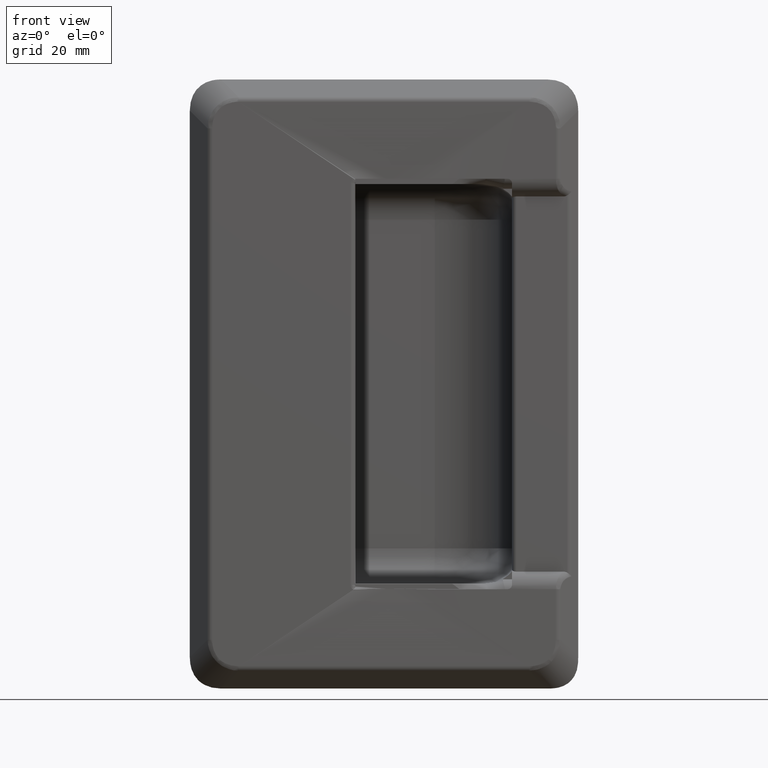
[diagram: clean part render]
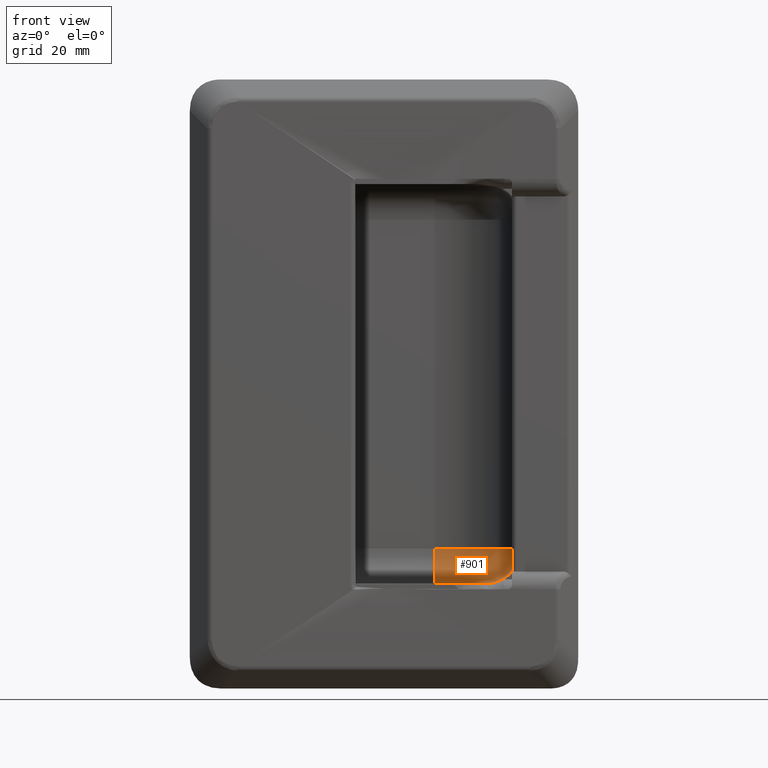
[diagram: same view with one face highlighted and labeled with its STEP entity id]
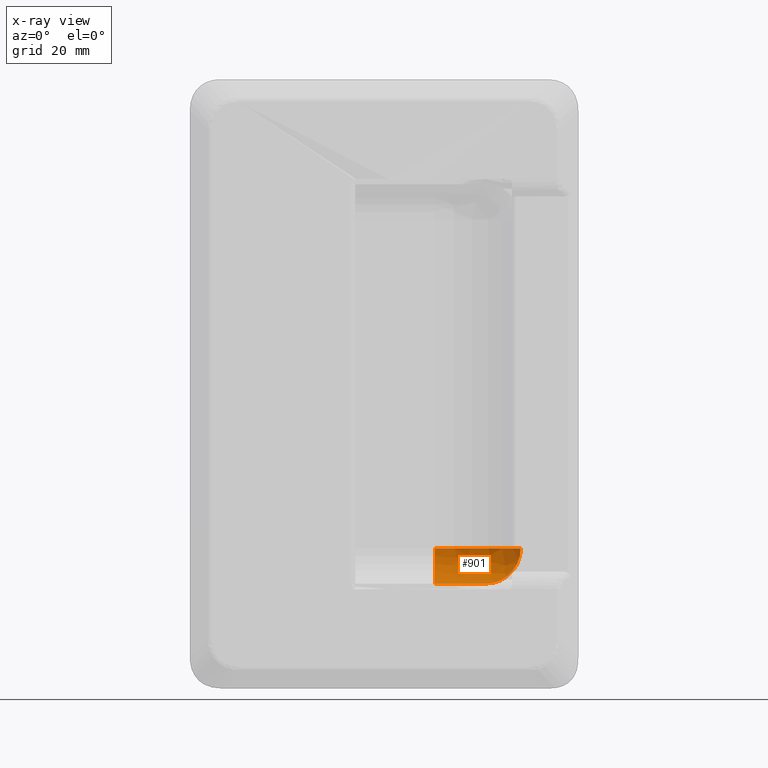
[diagram: x-ray of the same camera — body ghosted, the highlighted face saturated]
A machine part, front view. The second image highlights one B-rep face of the part: STEP entity #901.
The next image is the same camera in x-ray: the body ghosted, the highlighted face saturated — about 0% of this face is hidden behind the body in this view.
In plain terms, the highlighted face is a freeform B-spline surface patch.
Its self-contained STEP definition (entity closure, byte-faithful):
#901=ADVANCED_FACE('',(#3273),#3272,.F.);
#3272=( BOUNDED_SURFACE() B_SPLINE_SURFACE( 2,2,((#8422,#8423,#8424,#8425,#8426),(#8427,#8428,#8429,#8430,#8431),(#8432,#8433,#8434,#8435,#8436),(#8437,#8438,#8439,#8440,#8441),(#8442,#8443,#8444,#8445,#8446),(#8447,#8448,#8449,#8450,#8451),(#8452,#8453,#8454,#8455,#8456)), .UNSPECIFIED.,.T.,.F.,.F.) B_SPLINE_SURFACE_WITH_KNOTS((3,2,2,3),(3,2,3),(0.00000000000E+00,3.33333333333E-01,6.66666666667E-01,1.00000000000E+00),(0.00000000000E+00,5.00000000000E-01,1.00000000000E+00), .UNSPECIFIED. ) GEOMETRIC_REPRESENTATION_ITEM() RATIONAL_B_SPLINE_SURFACE(((1.00000000000E+00,7.07106781186E-01,1.00000000000E+00,7.07106781186E-01,1.00000000000E+00),(5.00000000000E-01,3.53553390593E-01,5.00000000000E-01,3.53553390593E-01,5.00000000000E-01),(1.00000000000E+00,7.07106781186E-01,1.00000000000E+00,7.07106781186E-01,1.00000000000E+00),(5.00000000000E-01,3.53553390593E-01,5.00000000000E-01,3.53553390593E-01,5.00000000000E-01),(1.00000000000E+00,7.07106781186E-01,1.00000000000E+00,7.07106781186E-01,1.00000000000E+00),(5.00000000000E-01,3.53553390593E-01,5.00000000000E-01,3.53553390593E-01,5.00000000000E-01),(1.00000000000E+00,7.07106781186E-01,1.00000000000E+00,7.07106781186E-01,1.00000000000E+00))) REPRESENTATION_ITEM('') SURFACE() );
#3273=FACE_OUTER_BOUND('',#8457,.T.);
#8422=CARTESIAN_POINT('',(7.99999999951E+00,6.00000000016E+00,-3.72500000002E+01));
#8423=CARTESIAN_POINT('',(7.99999999954E+00,6.00000000016E+00,-4.52500000002E+01));
#8424=CARTESIAN_POINT('',(-4.71465931616E-10,6.00000000016E+00,-4.52500000002E+01));
#8425=CARTESIAN_POINT('',(-8.00000000048E+00,6.00000000016E+00,-4.52500000002E+01));
#8426=CARTESIAN_POINT('',(-8.00000000049E+00,6.00000000016E+00,-3.72500000002E+01));
#8427=CARTESIAN_POINT('',(7.99999999951E+00,-6.21778263287E-02,-3.72500000002E+01));
#8428=CARTESIAN_POINT('',(7.99999999954E+00,-6.21778262991E-02,-4.52500000002E+01));
#8429=CARTESIAN_POINT('',(-4.71423788895E-10,-1.39185842869E+01,-4.52500000002E+01));
#8430=CARTESIAN_POINT('',(-8.00000000048E+00,-2.77749907474E+01,-4.52500000002E+01));
#8431=CARTESIAN_POINT('',(-8.00000000049E+00,-2.77749907474E+01,-3.72500000002E+01));
#8432=CARTESIAN_POINT('',(1.32499999995E+01,2.96891108692E+00,-3.72500000002E+01));
#8433=CARTESIAN_POINT('',(1.32499999995E+01,2.96891108693E+00,-4.52500000002E+01));
#8434=CARTESIAN_POINT('',(1.72499999995E+01,-3.95929214335E+00,-4.52500000002E+01));
#8435=CARTESIAN_POINT('',(2.12499999995E+01,-1.08874953736E+01,-4.52500000002E+01));
#8436=CARTESIAN_POINT('',(2.12499999995E+01,-1.08874953736E+01,-3.72500000002E+01));
#8437=CARTESIAN_POINT('',(1.84999999995E+01,6.00000000016E+00,-3.72500000002E+01));
#8438=CARTESIAN_POINT('',(1.84999999995E+01,6.00000000016E+00,-4.52500000002E+01));
#8439=CARTESIAN_POINT('',(3.44999999995E+01,6.00000000016E+00,-4.52500000002E+01));
#8440=CARTESIAN_POINT('',(5.04999999995E+01,6.00000000016E+00,-4.52500000002E+01));
#8441=CARTESIAN_POINT('',(5.04999999995E+01,6.00000000016E+00,-3.72500000002E+01));
#8442=CARTESIAN_POINT('',(1.32499999995E+01,9.03108891341E+00,-3.72500000002E+01));
#8443=CARTESIAN_POINT('',(1.32499999995E+01,9.03108891339E+00,-4.52500000002E+01));
#8444=CARTESIAN_POINT('',(1.72499999995E+01,1.59592921437E+01,-4.52500000002E+01));
#8445=CARTESIAN_POINT('',(2.12499999995E+01,2.28874953740E+01,-4.52500000002E+01));
#8446=CARTESIAN_POINT('',(2.12499999995E+01,2.28874953740E+01,-3.72500000002E+01));
#8447=CARTESIAN_POINT('',(7.99999999951E+00,1.20621778267E+01,-3.72500000002E+01));
#8448=CARTESIAN_POINT('',(7.99999999954E+00,1.20621778266E+01,-4.52500000002E+01));
#8449=CARTESIAN_POINT('',(-4.71493066811E-10,2.59185842872E+01,-4.52500000002E+01));
#8450=CARTESIAN_POINT('',(-8.00000000048E+00,3.97749907478E+01,-4.52500000002E+01));
#8451=CARTESIAN_POINT('',(-8.00000000049E+00,3.97749907478E+01,-3.72500000002E+01));
#8452=CARTESIAN_POINT('',(7.99999999951E+00,6.00000000016E+00,-3.72500000002E+01));
#8453=CARTESIAN_POINT('',(7.99999999954E+00,6.00000000016E+00,-4.52500000002E+01));
#8454=CARTESIAN_POINT('',(-4.71466421459E-10,6.00000000016E+00,-4.52500000002E+01));
#8455=CARTESIAN_POINT('',(-8.00000000048E+00,6.00000000016E+00,-4.52500000002E+01));
#8456=CARTESIAN_POINT('',(-8.00000000049E+00,6.00000000016E+00,-3.72500000002E+01));
#8457=EDGE_LOOP('',(#12282,#12283,#12284,#12285));
#12282=ORIENTED_EDGE('',*,*,#14684,.T.);
#12283=ORIENTED_EDGE('',*,*,#14685,.F.);
#12284=ORIENTED_EDGE('',*,*,#14677,.T.);
#12285=ORIENTED_EDGE('',*,*,#14686,.T.);
#14677=EDGE_CURVE('',#18708,#18709,#18710,.T.);
#14684=EDGE_CURVE('',#18754,#18755,#18756,.T.);
#14685=EDGE_CURVE('',#18708,#18755,#18762,.T.);
#14686=EDGE_CURVE('',#18709,#18754,#18768,.T.);
#18708=VERTEX_POINT('',#27098);
#18709=VERTEX_POINT('',#27099);
#18710=CIRCLE('',#27103,8.00000000000E+00);
#18754=VERTEX_POINT('',#27126);
#18755=VERTEX_POINT('',#27127);
#18756=CIRCLE('',#27131,8.00000000000E+00);
#18762=CIRCLE('',#27135,1.95000000000E+01);
#18768=CIRCLE('',#27139,1.15000000000E+01);
#27098=CARTESIAN_POINT('',(1.14999999995E+01,2.55000000002E+01,-3.72500000002E+01));
#27099=CARTESIAN_POINT('',(1.14999999995E+01,1.75000000002E+01,-4.52500000002E+01));
#27100=CARTESIAN_POINT('',(1.14999999995E+01,1.75000000002E+01,-3.72500000002E+01));
#27101=DIRECTION('',(-1.00000000000E+00,0.00000000000E+00,-8.58504775871E-13));
#27102=DIRECTION('',(-0.00000000000E+00,-1.00000000000E+00,-0.00000000000E+00));
#27103=AXIS2_PLACEMENT_3D('',#27100,#27101,#27102);
#27126=CARTESIAN_POINT('',(2.29999999995E+01,6.00000000016E+00,-4.52500000002E+01));
#27127=CARTESIAN_POINT('',(3.09999999995E+01,6.00000000016E+00,-3.72500000002E+01));
#27128=CARTESIAN_POINT('',(2.29999999995E+01,6.00000000016E+00,-3.72500000002E+01));
#27129=DIRECTION('',(0.00000000000E+00,-1.00000000000E+00,0.00000000000E+00));
#27130=DIRECTION('',(-8.58868531850E-13,-0.00000000000E+00,1.00000000000E+00));
#27131=AXIS2_PLACEMENT_3D('',#27128,#27129,#27130);
#27132=CARTESIAN_POINT('',(1.14999999995E+01,6.00000000016E+00,-3.72500000002E+01));
#27133=DIRECTION('',(3.10923114819E-15,-2.83236103352E-31,-1.00000000000E+00));
#27134=DIRECTION('',(-9.10952225333E-17,-1.00000000000E+00,-0.00000000000E+00));
#27135=AXIS2_PLACEMENT_3D('',#27132,#27133,#27134);
#27136=CARTESIAN_POINT('',(1.14999999995E+01,6.00000000016E+00,-4.52500000002E+01));
#27137=DIRECTION('',(8.58504775871E-13,3.97828912246E-28,-1.00000000000E+00));
#27138=DIRECTION('',(4.63397436365E-16,-1.00000000000E+00,-0.00000000000E+00));
#27139=AXIS2_PLACEMENT_3D('',#27136,#27137,#27138);